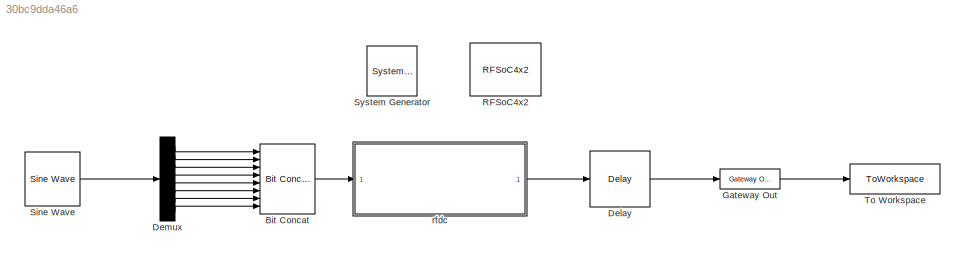
MODEL slx_30bc9dda46a6
KIND model
CONFIG AbsTol = auto
CONFIG EnableMultiTasking = off
CONFIG FixedStep = 1
CONFIG MaxStep = auto
CONFIG MinStep = auto
CONFIG RelTol = 1e-3
CONFIG SampleTimeConstraint = Unconstrained
CONFIG SolverName = FixedStepDiscrete
CONFIG StartTime = 0.0
CONFIG StopTime = 400.0
BLOCK [Reference]  System Generator  REF=xbsIndex_r4/ System Generator
  AttributesFormatString = System\nGenerator
  Ports = []
  SourceBlock = xbsIndex_r4/ System Generator
  SourceType = Xilinx System Generator Block
  Tag = genX
  UserDataPersistent = on
BLOCK [Reference] Bit Concat  REF=hdlsllib/Logic and Bit
Operations/Bit Concat
  Ports = [8, 1]
  SourceBlock = hdlsllib/Logic and Bit\nOperations/Bit Concat
  SourceProductBaseCode = SL
  SourceType = Bit Concat
BLOCK [Reference] Delay  REF=xbsIndex_r4/Delay
  Ports = [1, 1]
  SourceBlock = xbsIndex_r4/Delay
  SourceType = Xilinx Delay Block
BLOCK [Demux] Demux
  Outputs = 8
  Ports = [1, 8]
BLOCK [Reference] Gateway Out  REF=xbsIndex_r4/Gateway Out
  Ports = [1, 1]
  SourceBlock = xbsIndex_r4/Gateway Out
  SourceType = Xilinx Gateway Out Block
BLOCK [Reference] RFSoC4x2  REF=xps_library/Platforms/RFSoC4x2  (lib defined in mdl_00b5cec29cd0, mdl_02ab6ecaa3d1, +5 more)
  Ports = []
  SourceBlock = xps_library/Platforms/RFSoC4x2
  SourceProductName = CASPER XPS Blockset
  SourceType = xsg core config
  Tag = xps:xsg
BLOCK [Reference] Sine Wave  REF=dspsrcs4/Sine Wave
  Ports = [0, 1]
  SourceBlock = dspsrcs4/Sine Wave
  SourceProductBaseCode = DS
  SourceType = Sine Wave
BLOCK [ToWorkspace] To Workspace
  FixptAsFi = on
  MaxDataPoints = inf
  Ports = [1]
  SampleTime = -1
  Save2DSignal = 2-D array (concatenate along first dimension)
  VariableName = test
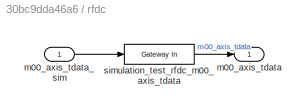
BLOCK [SubSystem] rfdc
  AncestorBlock = xps_library/ADCs/rfdc
  Ports = [1, 1]
  RequestExecContextInheritance = off
  Tag = xps:rfdc
  UserDataPersistent = on
BLOCK [Outport] rfdc/m00_axis_tdata
BLOCK [Inport] rfdc/m00_axis_tdata_sim
BLOCK [Reference] rfdc/simulation_test_rfdc_m00_axis_tdata  REF=xbsIndex_r4/Gateway In
  Ports = [1, 1]
  SourceBlock = xbsIndex_r4/Gateway In
  SourceType = Xilinx Gateway In Block
LINE Bit Concat:1 -> rfdc:1
LINE Delay:1 -> Gateway Out:1
LINE Demux:1 -> Bit Concat:1
LINE Demux:2 -> Bit Concat:2
LINE Demux:3 -> Bit Concat:3
LINE Demux:4 -> Bit Concat:4
LINE Demux:5 -> Bit Concat:5
LINE Demux:6 -> Bit Concat:6
LINE Demux:7 -> Bit Concat:7
LINE Demux:8 -> Bit Concat:8
LINE Gateway Out:1 -> To Workspace:1
LINE Sine Wave:1 -> Demux:1
LINE rfdc:1 -> Delay:1
